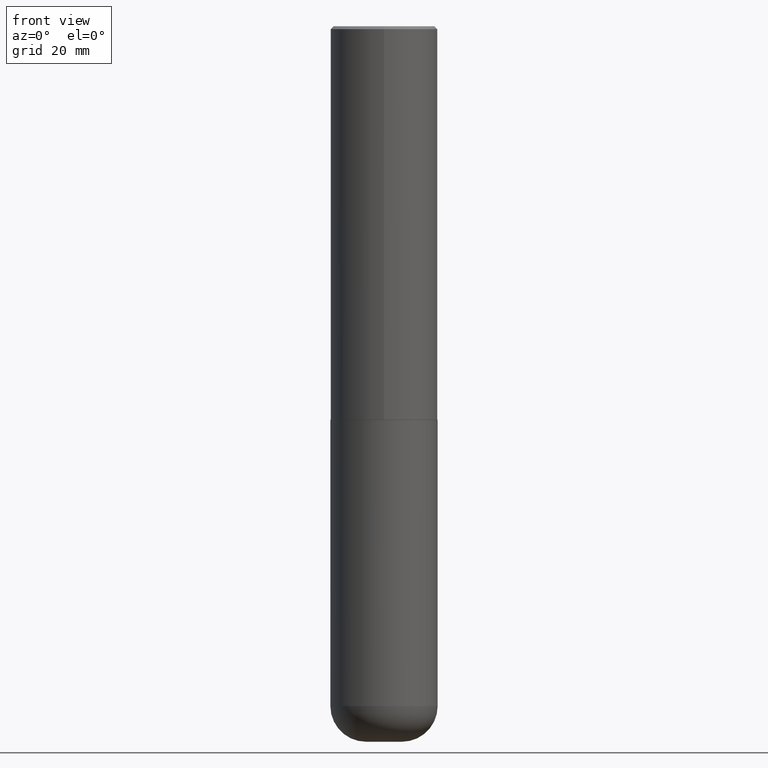
[diagram: clean part render]
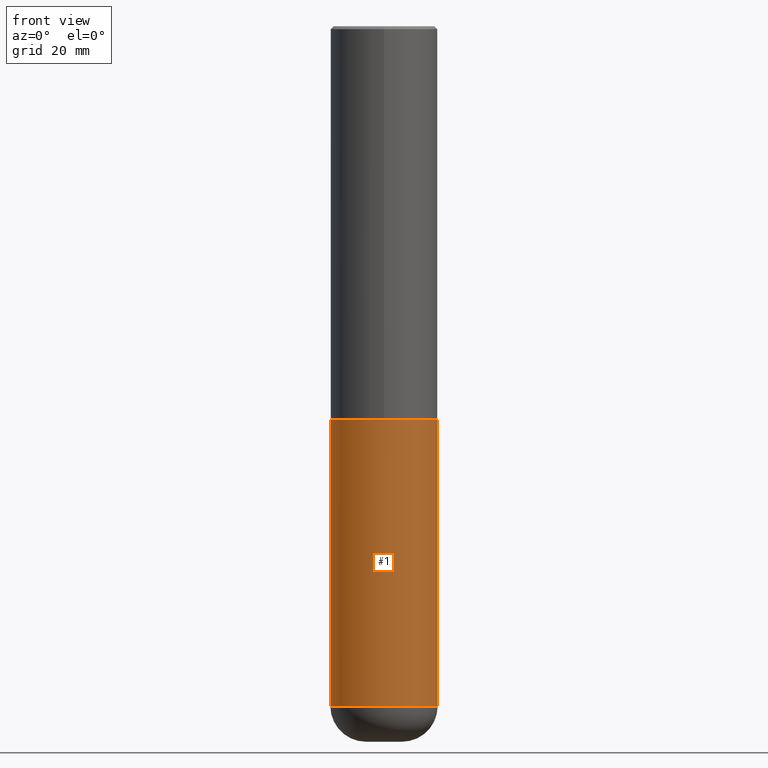
[diagram: same view with one face highlighted and labeled with its STEP entity id]
A machine part, front view. The second image highlights one B-rep face of the part: STEP entity #1.
In plain terms, the highlighted cylindrical surface (partial cylindrical patch) has radius 9.525 mm, axis along (-0, 0, 1).
Its self-contained STEP definition (entity closure, byte-faithful):
#1 = ADVANCED_FACE ( 'NONE', ( #340 ), #23, .T. ) ;
#11 = DIRECTION ( 'NONE',  ( 1.000000000000000000, -6.982962677686266711E-15, 0.000000000000000000 ) ) ;
#23 = CYLINDRICAL_SURFACE ( 'NONE', #63, 0.3749999999999999445 ) ;
#29 = DIRECTION ( 'NONE',  ( -2.445468806185136877E-29, 3.491481338843145188E-15, 1.000000000000000000 ) ) ;
#56 = CARTESIAN_POINT ( 'NONE',  ( 0.3749999999999999445, -2.618611004132349622E-15, 1.828566290923475642E-29 ) ) ;
#60 = CARTESIAN_POINT ( 'NONE',  ( -0.3750000000000002220, -1.392000110040456296E-14, -4.750000000000000000 ) ) ;
#63 = AXIS2_PLACEMENT_3D ( 'NONE', #118, #342, #77 ) ;
#68 = ORIENTED_EDGE ( 'NONE', *, *, #396, .F. ) ;
#77 = DIRECTION ( 'NONE',  ( 1.000000000000000000, -6.982962677686266711E-15, 4.876176775795935793E-29 ) ) ;
#102 = CARTESIAN_POINT ( 'NONE',  ( 6.725039217009124520E-29, -9.601573681818649859E-15, -2.750000000000000000 ) ) ;
#117 = VERTEX_POINT ( 'NONE', #60 ) ;
#118 = CARTESIAN_POINT ( 'NONE',  ( 0.000000000000000000, 0.000000000000000000, 0.000000000000000000 ) ) ;
#131 = EDGE_CURVE ( 'NONE', #117, #245, #188, .T. ) ;
#137 = AXIS2_PLACEMENT_3D ( 'NONE', #102, #212, #11 ) ;
#156 = CIRCLE ( 'NONE', #137, 0.3750000000000000555 ) ;
#164 = CARTESIAN_POINT ( 'NONE',  ( 1.161597682937940108E-28, -1.658453635950494339E-14, -4.750000000000000000 ) ) ;
#171 = ORIENTED_EDGE ( 'NONE', *, *, #304, .F. ) ;
#174 = DIRECTION ( 'NONE',  ( -2.445468806185136877E-29, 3.491481338843145188E-15, 1.000000000000000000 ) ) ;
#185 = EDGE_LOOP ( 'NONE', ( #68, #187, #303, #171 ) ) ;
#187 = ORIENTED_EDGE ( 'NONE', *, *, #131, .T. ) ;
#188 = CIRCLE ( 'NONE', #384, 0.3749999999999999445 ) ;
#202 = LINE ( 'NONE', #294, #411 ) ;
#212 = DIRECTION ( 'NONE',  ( -2.445468806185136597E-29, 3.491481338843145583E-15, 1.000000000000000000 ) ) ;
#240 = CARTESIAN_POINT ( 'NONE',  ( -0.3750000000000000555, -1.042851976156142014E-14, -2.750000000000000000 ) ) ;
#245 = VERTEX_POINT ( 'NONE', #350 ) ;
#261 = DIRECTION ( 'NONE',  ( 1.000000000000000000, -6.982962677686269077E-15, 0.000000000000000000 ) ) ;
#268 = CARTESIAN_POINT ( 'NONE',  ( 0.3750000000000000555, -1.222018468595100145E-14, -2.750000000000000000 ) ) ;
#282 = VECTOR ( 'NONE', #29, 39.37007874015748143 ) ;
#286 = EDGE_CURVE ( 'NONE', #245, #327, #348, .T. ) ;
#294 = CARTESIAN_POINT ( 'NONE',  ( -0.3749999999999999445, 2.664535259100375303E-15, -1.844600658845589318E-29 ) ) ;
#300 = VERTEX_POINT ( 'NONE', #240 ) ;
#303 = ORIENTED_EDGE ( 'NONE', *, *, #286, .T. ) ;
#304 = EDGE_CURVE ( 'NONE', #300, #327, #156, .T. ) ;
#327 = VERTEX_POINT ( 'NONE', #268 ) ;
#340 = FACE_OUTER_BOUND ( 'NONE', #185, .T. ) ;
#342 = DIRECTION ( 'NONE',  ( -2.445468806185136597E-29, 3.491481338843145583E-15, 1.000000000000000000 ) ) ;
#348 = LINE ( 'NONE', #56, #282 ) ;
#350 = CARTESIAN_POINT ( 'NONE',  ( 0.3750000000000002220, -1.920314736363729341E-14, -4.750000000000000000 ) ) ;
#382 = DIRECTION ( 'NONE',  ( -2.445468806185136597E-29, 3.491481338843145583E-15, 1.000000000000000000 ) ) ;
#384 = AXIS2_PLACEMENT_3D ( 'NONE', #164, #382, #261 ) ;
#396 = EDGE_CURVE ( 'NONE', #117, #300, #202, .T. ) ;
#411 = VECTOR ( 'NONE', #174, 39.37007874015748143 ) ;